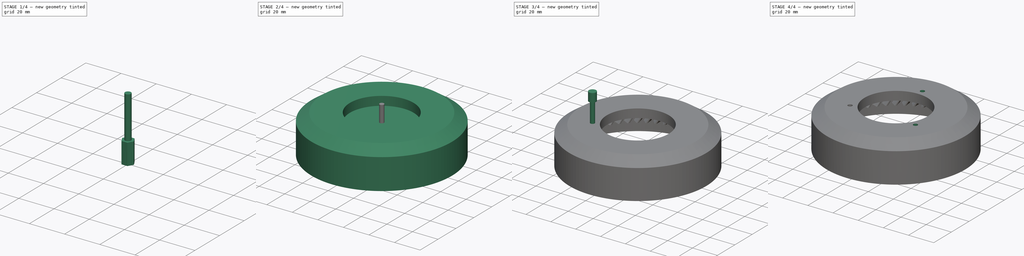
[diagram: build sequence overview — one tinted view per stage of 4, left to right]
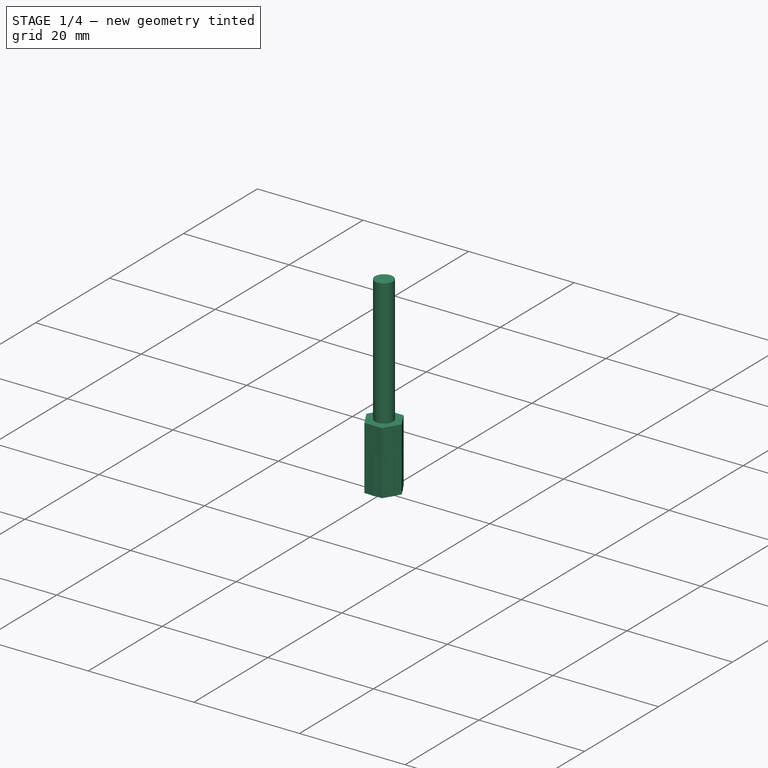
[diagram: stage 1 of 4 — iso view after this stage's code; geometry added in this stage tinted green]
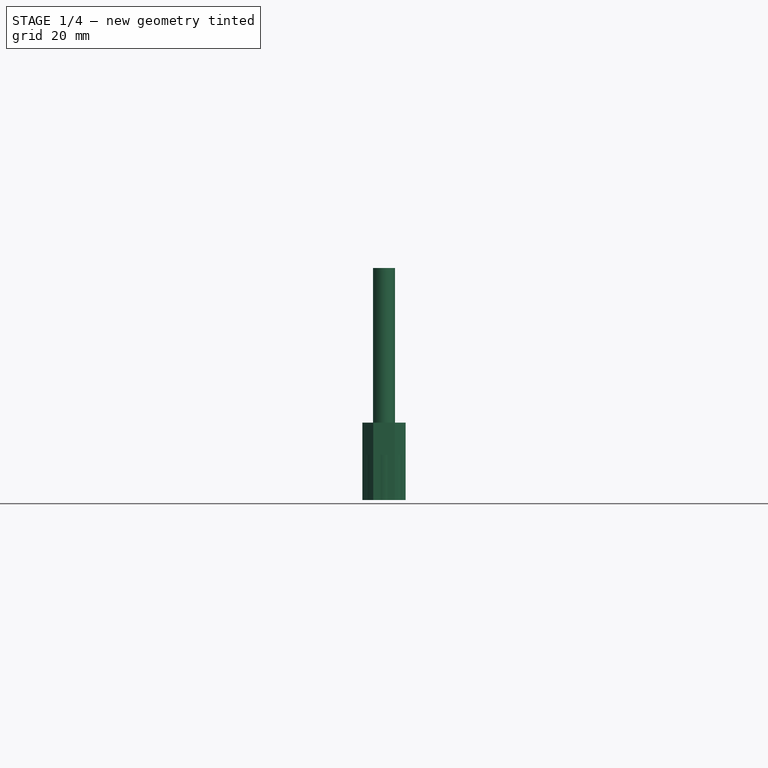
[diagram: stage 1 of 4 — front view after this stage's code; geometry added in this stage tinted green]
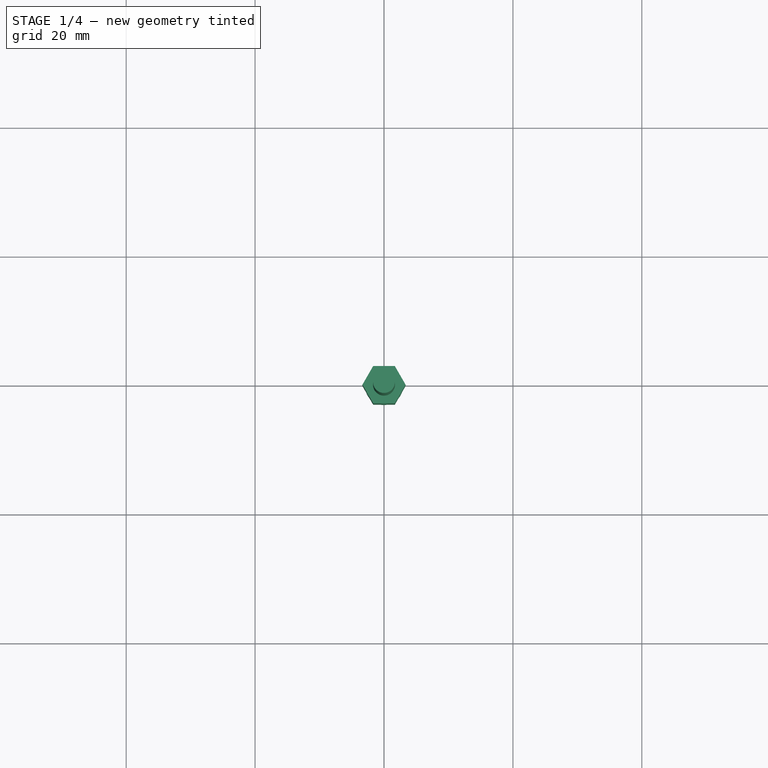
[diagram: stage 1 of 4 — top view after this stage's code; geometry added in this stage tinted green]
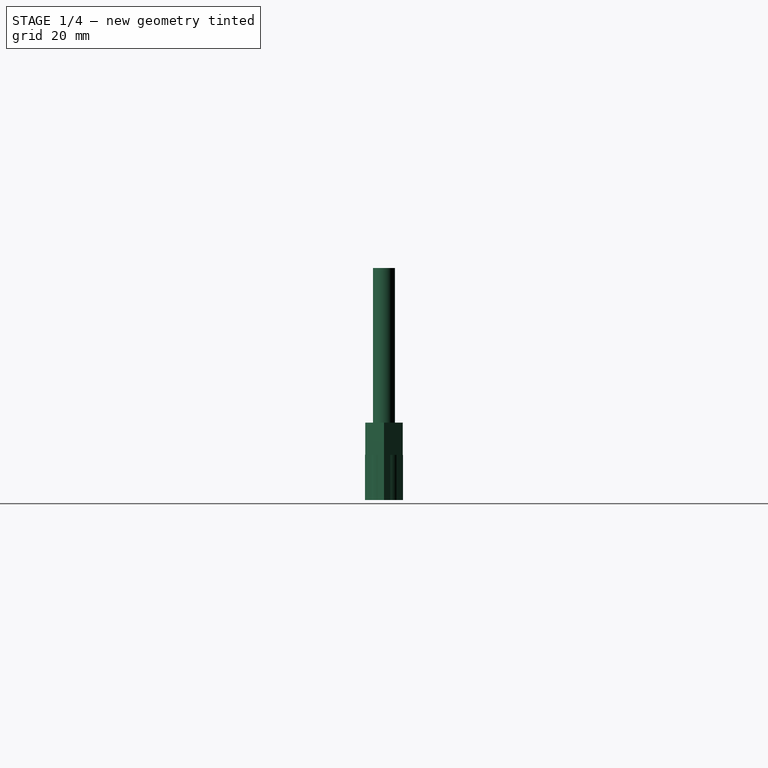
[diagram: stage 1 of 4 — right view after this stage's code; geometry added in this stage tinted green]
FCSTD DOCUMENT  (FreeCAD 0.16RUnknown)
Label: Art1BotP1
License: All rights reserved
LicenseURL: http://en.wikipedia.org/wiki/All_rights_reserved
objects: Part::FeaturePython×3, Part::Cut×3, Part::Cylinder×2, Part::MultiFuse×2, Part::Prism×1, Sketcher::SketchObject×1, PartDesign::Revolution×1, Part::Helix×1, Part::Part2DObjectPython×1, Part::Sweep×1, Part::Box×1, App::DocumentObjectGroup×1
note: 18 computed .brp shape members not serialized (recipe doc carries the construction recipe); baked Part::Feature solids carry a one-line shape summary decoded from their .brp

FEATURE [Part::Cylinder] Cylinder  label="M3BoltHead"
  Angle = 360
  Height = 7
  Radius = 2.95
FEATURE [Part::Cylinder] Cylinder001  label="M3BoltBody"
  Angle = 360
  Height = 30
  Placement = pos=(0,0,6) rot=(0,0,1;0rad)
  Radius = 1.7
FEATURE [Part::MultiFuse] Fusion  label="M3Bolt"
  Shapes = -> [Cylinder001,Cylinder]
FEATURE [Part::Prism] Prism  label="M3Nut"
  Circumradius = 3.35
  Height = 12
  Polygon = 6
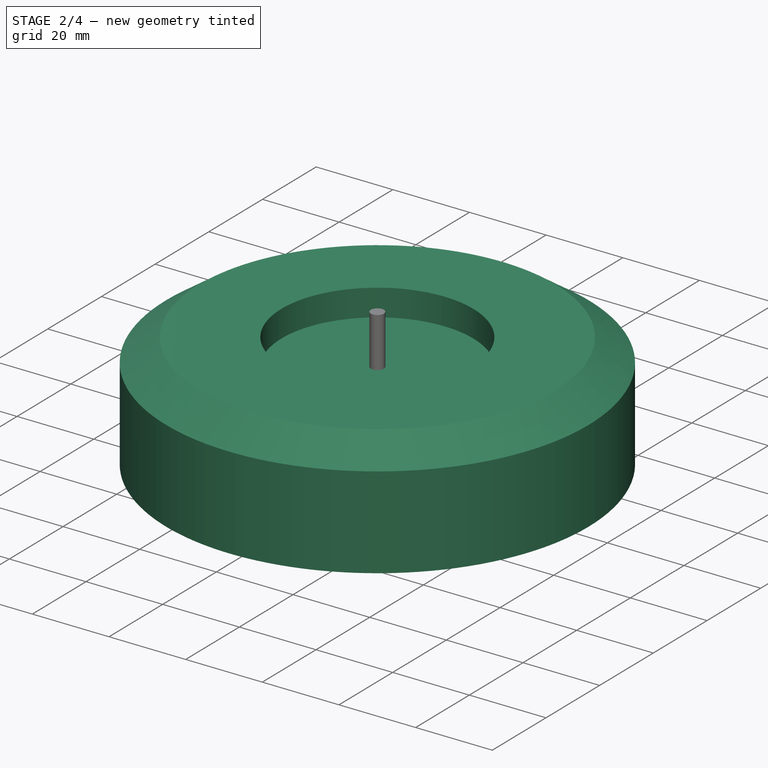
[diagram: stage 2 of 4 — iso view after this stage's code; geometry added in this stage tinted green]
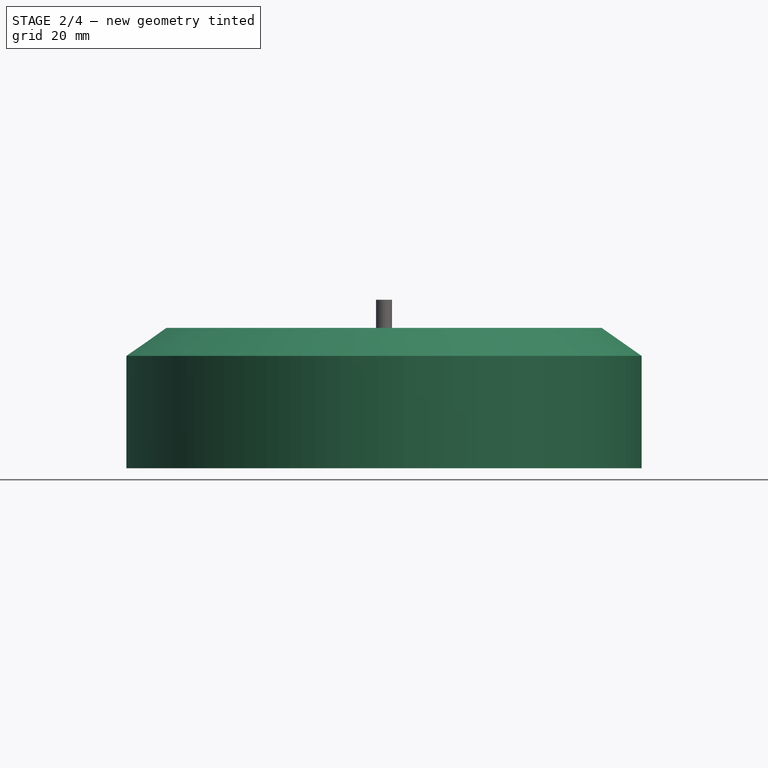
[diagram: stage 2 of 4 — front view after this stage's code; geometry added in this stage tinted green]
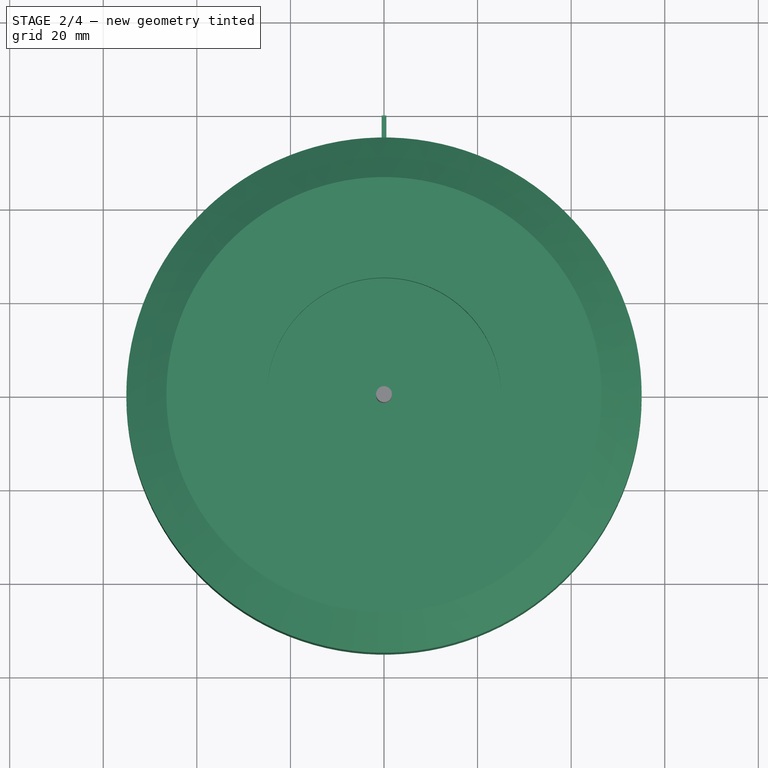
[diagram: stage 2 of 4 — top view after this stage's code; geometry added in this stage tinted green]
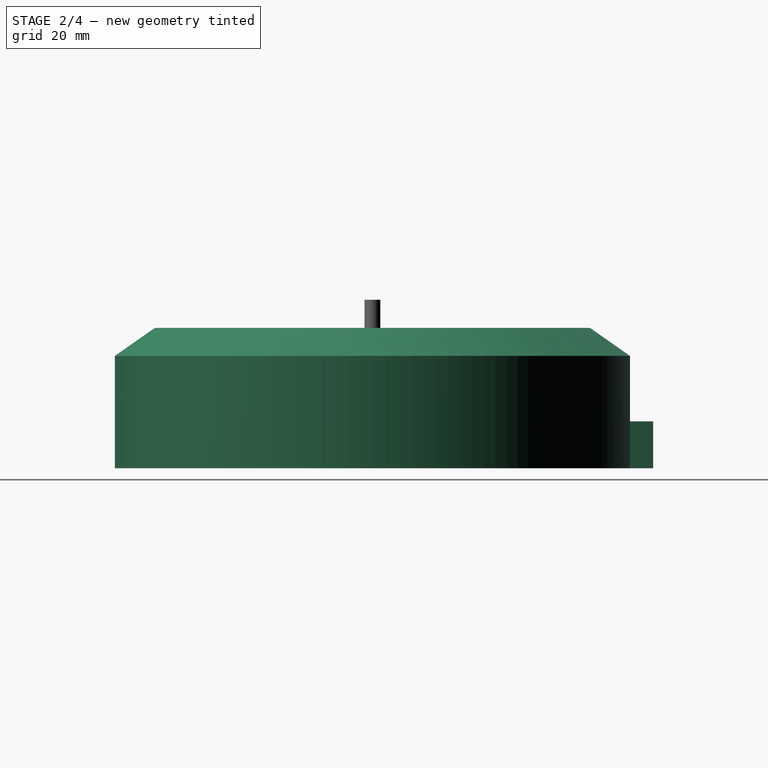
[diagram: stage 2 of 4 — right view after this stage's code; geometry added in this stage tinted green]
FEATURE [Sketcher::SketchObject] Sketch074
  Placement = pos=(0,0,0) rot=(1,0,0;1.5708rad)
  sketch-geometry (8):
    g0: LineSegment StartX=25 StartY=9 StartZ=0 EndX=54.0692 EndY=9 EndZ=0
    g1: LineSegment StartX=55.0692 StartY=0 StartZ=0 EndX=55.0692 EndY=24 EndZ=0
    g2: LineSegment StartX=46.5003 StartY=30 StartZ=0 EndX=35 EndY=30 EndZ=0
    g3: LineSegment StartX=25 StartY=30 StartZ=0 EndX=25 EndY=9 EndZ=0
    g4: LineSegment StartX=46.5003 StartY=30 StartZ=0 EndX=55.0692 EndY=24 EndZ=0
    g5: LineSegment StartX=55.0692 StartY=0 StartZ=0 EndX=54.0692 EndY=0 EndZ=0
    g6: LineSegment StartX=54.0692 StartY=0 StartZ=0 EndX=54.0692 EndY=9 EndZ=0
    g7: LineSegment StartX=46.5003 StartY=30 StartZ=0 EndX=25 EndY=30 EndZ=0
  constraints (22):
    c: Vertical(g1)
    c: Horizontal(g2)
    c: Coincident(g3,g0)
    c: Vertical(g3)
    c: DistanceX(g-1,g0) = 25
    c: Coincident(g4,g2)
    c: Coincident(g4,g1)
    c: DistanceY(g4) = -6
    c: Horizontal(g0)
    c: PointOnObject(g5,g-1)
    c: PointOnObject(g5,g-1)
    c: Coincident(g5,g6)
    c: Coincident(g6,g0)
    c: Vertical(g6)
    c: DistanceY(g6) = 9
    c: DistanceY(g1,g0) = -15
    c: Coincident(g1,g5)
    c: Angle(g4) = -0.610865
    c: DistanceX(g5) = -1
    c: Coincident(g7,g2)
    c: Horizontal(g7)
    c: Coincident(g3,g7)
FEATURE [PartDesign::Revolution] Revolution019
  Angle = 360
  Axis = (0,0,1)
  Base = (0,0,0)
  Placement = pos=(0,0,0) rot=(1,0,0;1.5708rad)
  ReferenceAxis = -> Sketch074 [V_Axis]
  Reversed = true
  Sketch = -> Sketch074
FEATURE [Part::Helix] Helix007  label="Art1BotHelix"
  Angle = 0
  Height = 15
  LocalCoord = 1
  Pitch = 500
  Placement = pos=(0,0,10) rot=(0,0,1;0rad)
  Radius = 1
  Style = 1
FEATURE [Part::Part2DObjectPython] InvoluteGear007  # Draft 2D object (typed FeaturePython)
  ExternalGear = true
  HighPrecision = true
  Modules = 2
  NumberOfTeeth = 50
  Placement = pos=(0,0,10) rot=(0,0,1;0rad)
  PressureAngle = 20
FEATURE [Part::Sweep] Sweep007
  Frenet = true
  Placement = pos=(0,0,-2) rot=(0,0,1;0rad)
  Sections = -> [InvoluteGear007]
  Solid = true
  Spine = -> Helix007 [Edge1]
  Transition = 1
FEATURE [Part::Box] Box264  label="Cube027"
  Height = 10
  Length = 10
  Placement = pos=(0.5,50,0) rot=(0,0,1;1.5708rad)
  Width = 1
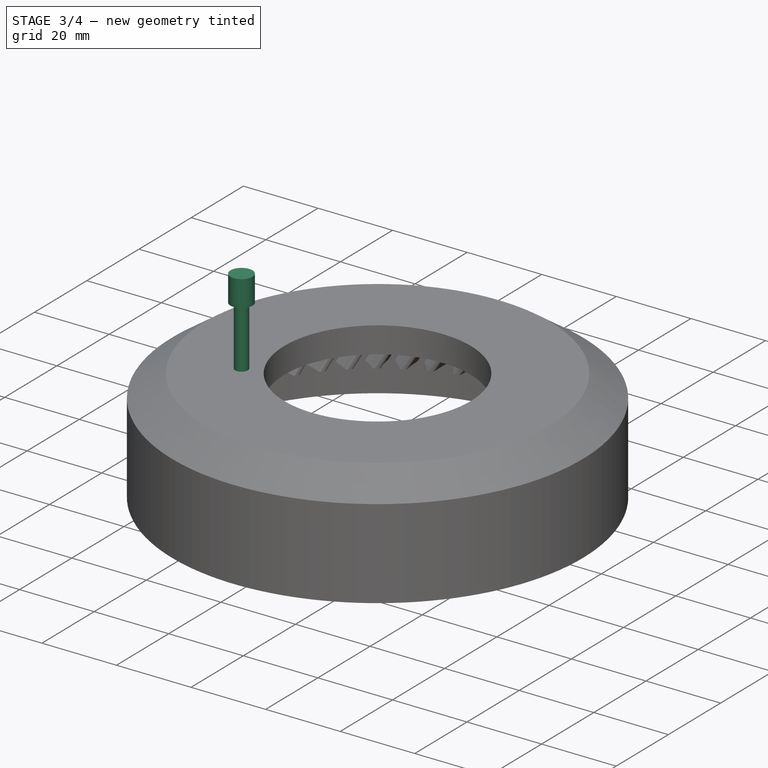
[diagram: stage 3 of 4 — iso view after this stage's code; geometry added in this stage tinted green]
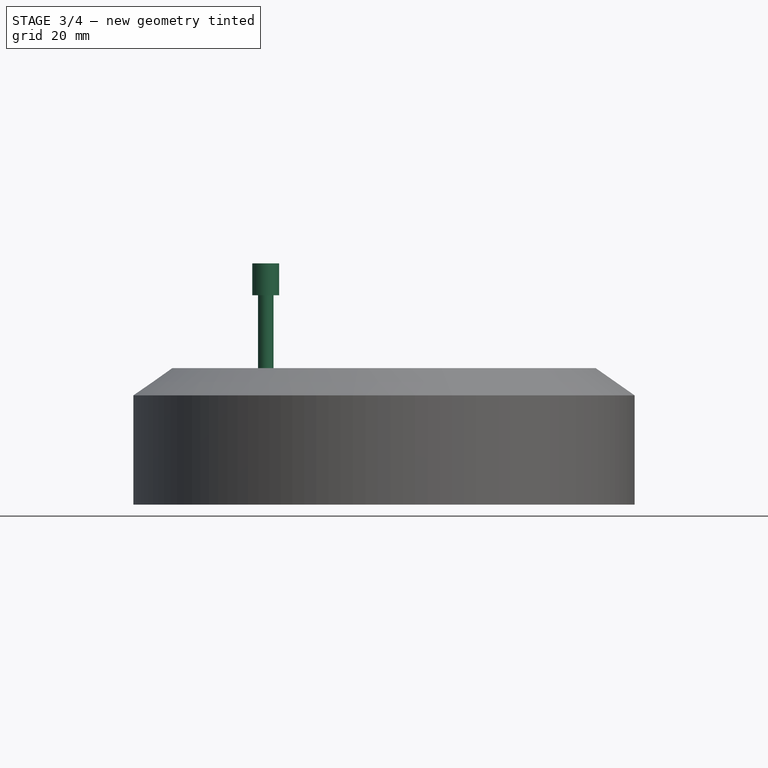
[diagram: stage 3 of 4 — front view after this stage's code; geometry added in this stage tinted green]
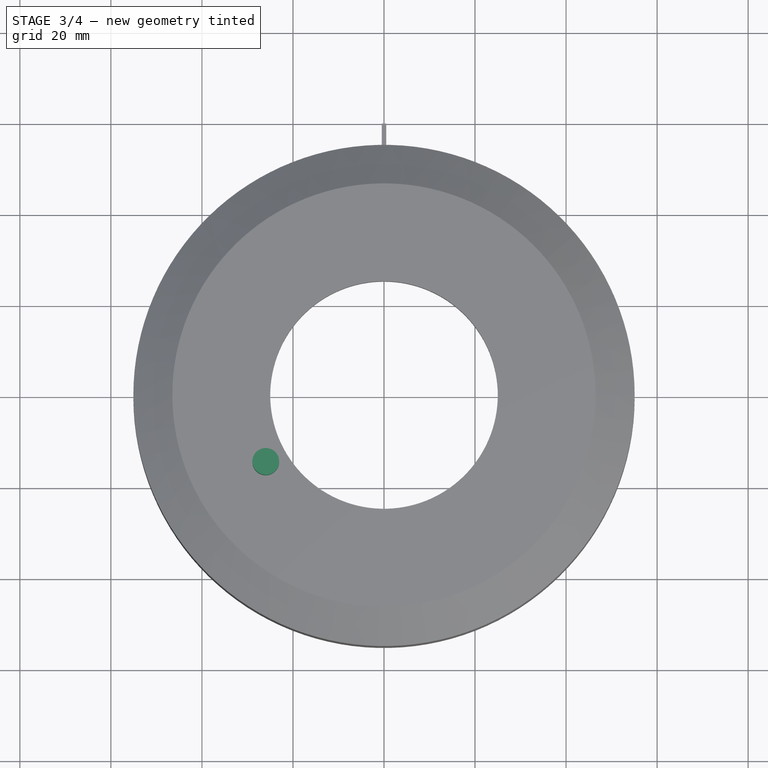
[diagram: stage 3 of 4 — top view after this stage's code; geometry added in this stage tinted green]
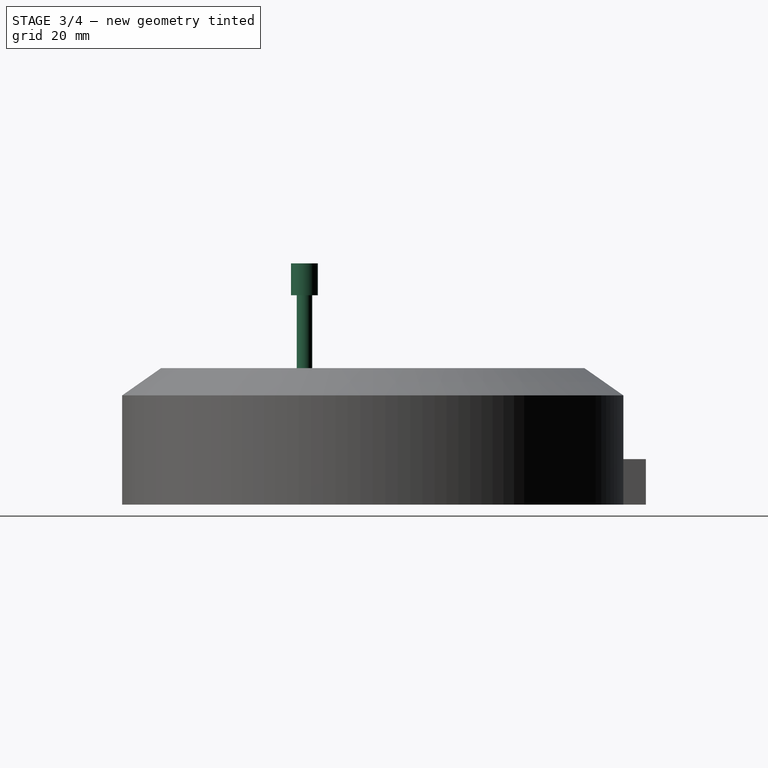
[diagram: stage 3 of 4 — right view after this stage's code; geometry added in this stage tinted green]
FEATURE [Part::FeaturePython] Clone380  label="Clone of M3Bolt123"  # Draft clone (typed FeaturePython)
  Objects = -> [Fusion]
  Placement = pos=(-25.9808,-15,53) rot=(0,1,0;3.14159rad)
  Scale = (1,1,1)
FEATURE [Part::FeaturePython] Clone382  label="Clone of M3Nut020"  # Draft clone (typed FeaturePython)
  Objects = -> [Prism]
  Placement = pos=(-25.9808,-15,17) rot=(0,0,1;0rad)
  Scale = (1,1,1)
FEATURE [Part::Cut] Cut134  label="Cut175"
  Base = -> Revolution019
  Tool = -> Sweep007
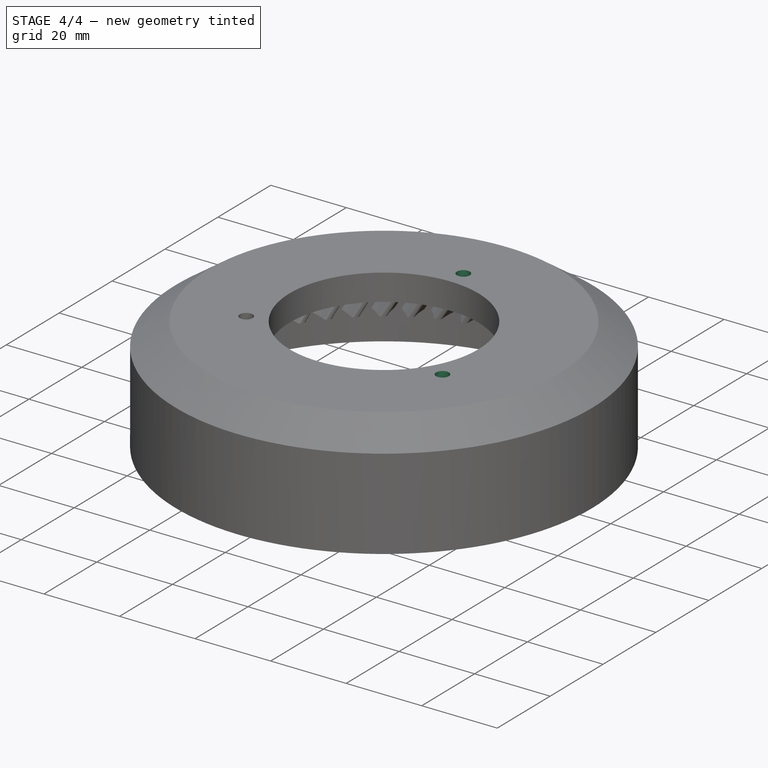
[diagram: stage 4 of 4 — iso view after this stage's code; geometry added in this stage tinted green]
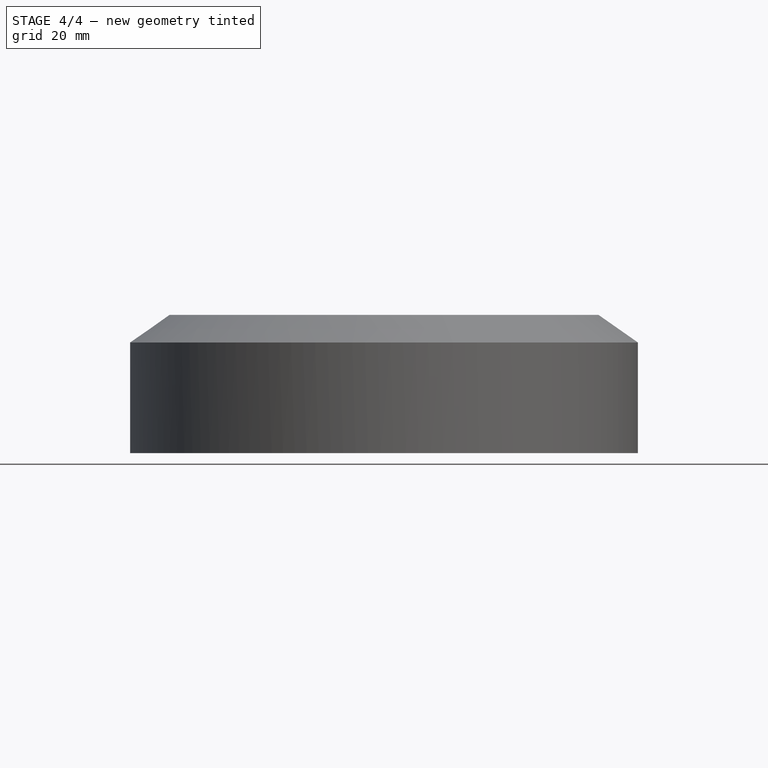
[diagram: stage 4 of 4 — front view after this stage's code; geometry added in this stage tinted green]
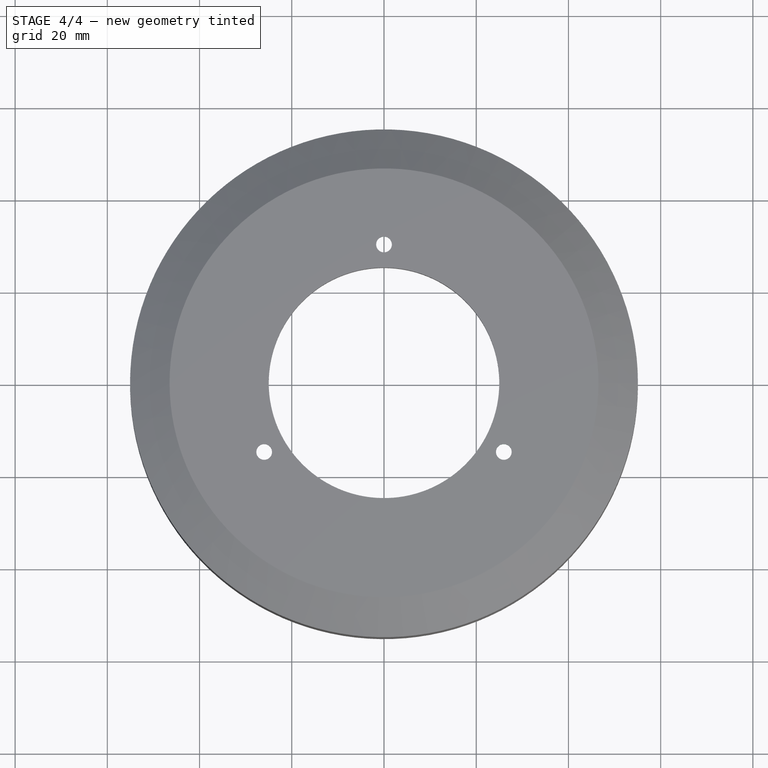
[diagram: stage 4 of 4 — top view after this stage's code; geometry added in this stage tinted green]
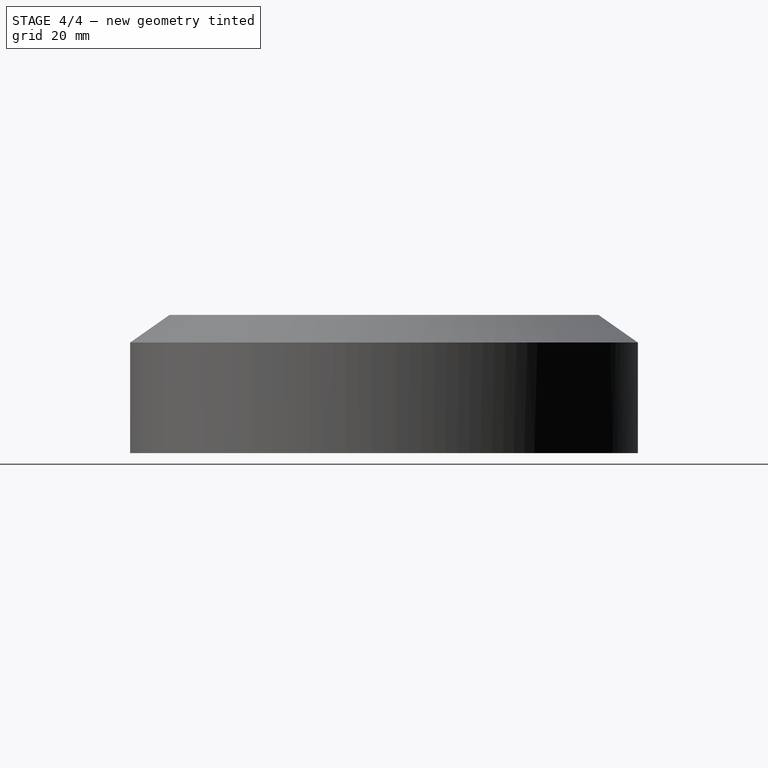
[diagram: stage 4 of 4 — right view after this stage's code; geometry added in this stage tinted green]
FEATURE [Part::MultiFuse] Fusion144
  Shapes = -> [Clone382,Clone380]
FEATURE [Part::FeaturePython] Array020  # Draft array (typed FeaturePython)
  Angle = 360
  ArrayType = 1
  Axis = (0,0,1)
  Base = -> Fusion144
  Center = (0,0,0)
  Fuse = false
  IntervalAxis = (0,0,0)
  IntervalX = (1,0,0)
  IntervalY = (0,1,0)
  IntervalZ = (0,0,0)
  NumberPolar = 3
  NumberX = 2
  NumberY = 2
  NumberZ = 1
FEATURE [Part::Cut] Cut135  label="Cut167"
  Base = -> Cut134
  Tool = -> Array020
FEATURE [Part::Cut] Cut136  label="Art1Bot"
  Base = -> Cut135
  Tool = -> Box264
FEATURE [App::DocumentObjectGroup] Group  label="Master"
  Group = -> [Fusion,Prism,Helix007]
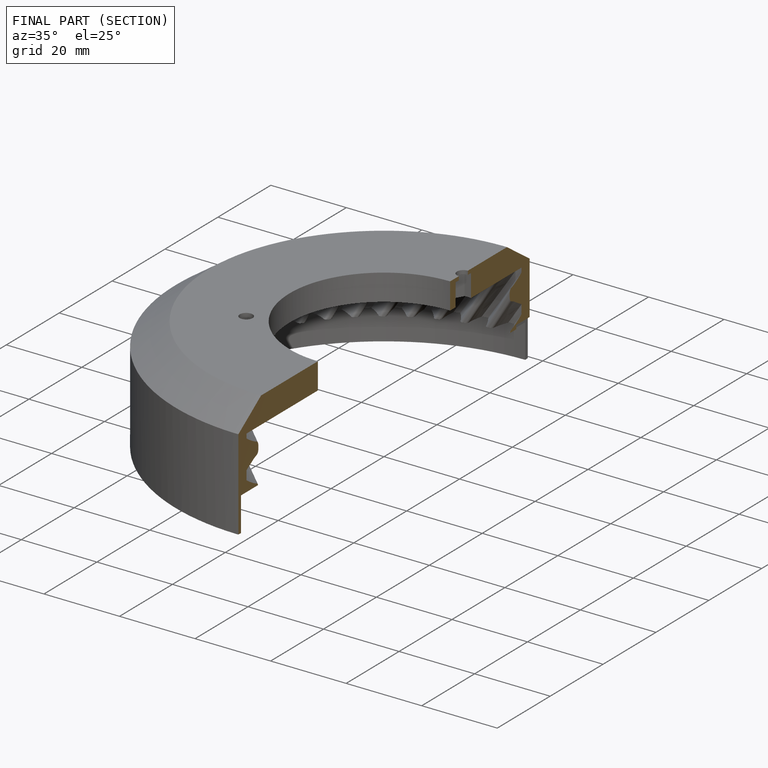
[diagram: finished part — half-section view (interior)]
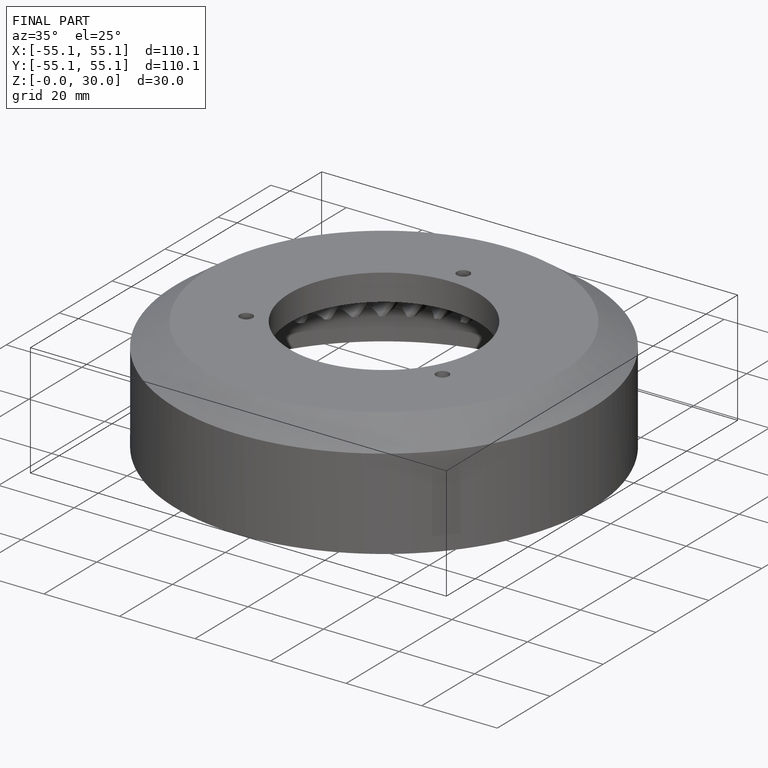
[diagram: finished part — iso view with bounding-box wireframe]
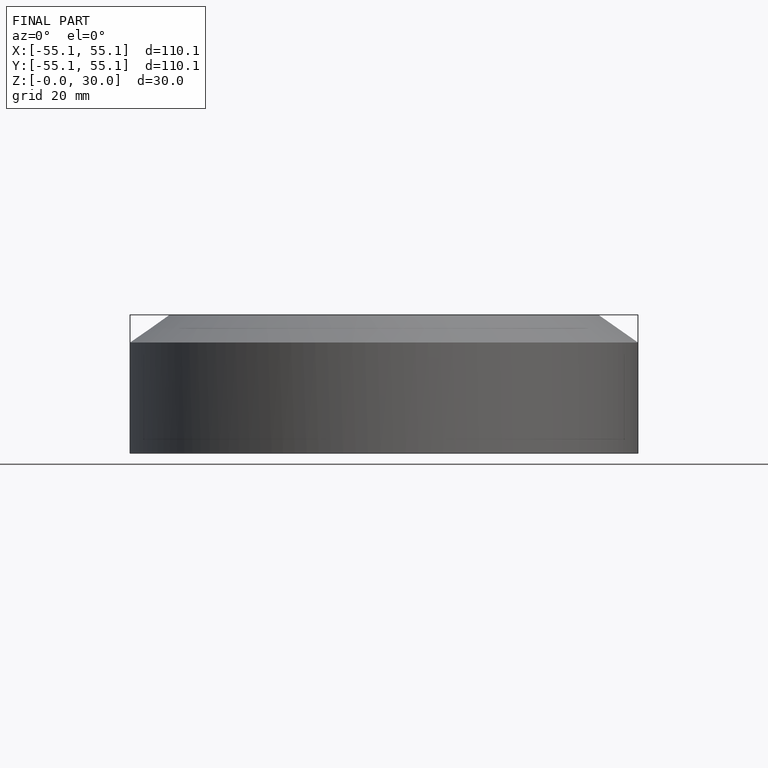
[diagram: finished part — front view with bounding-box wireframe]
